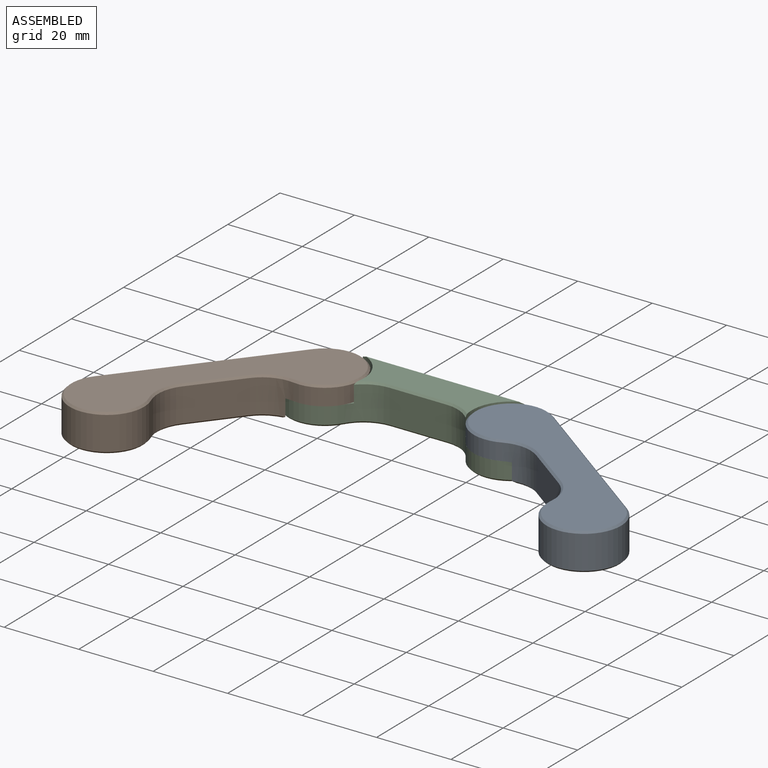
[diagram: assembled view]
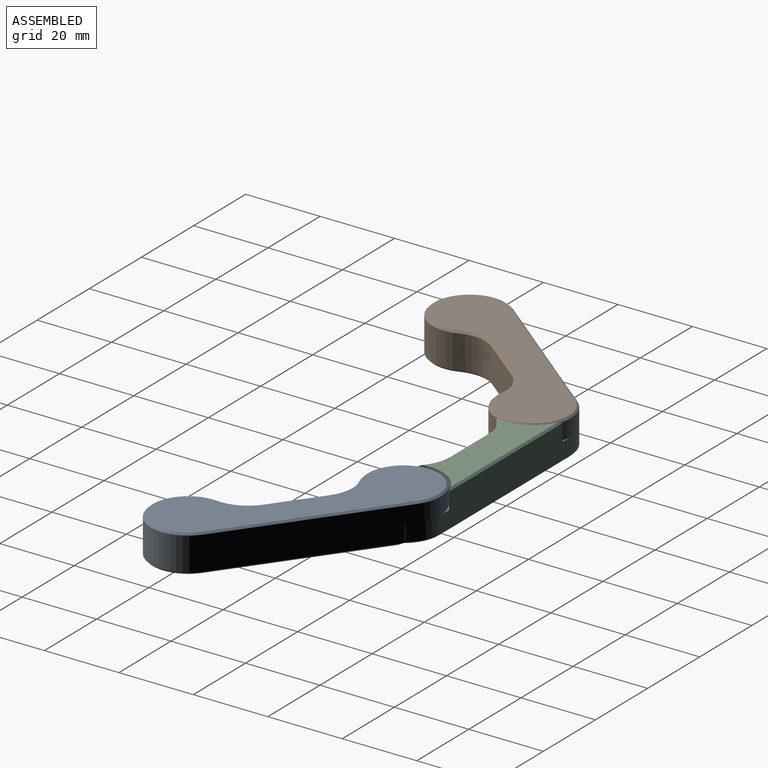
[diagram: assembled view, second angle]
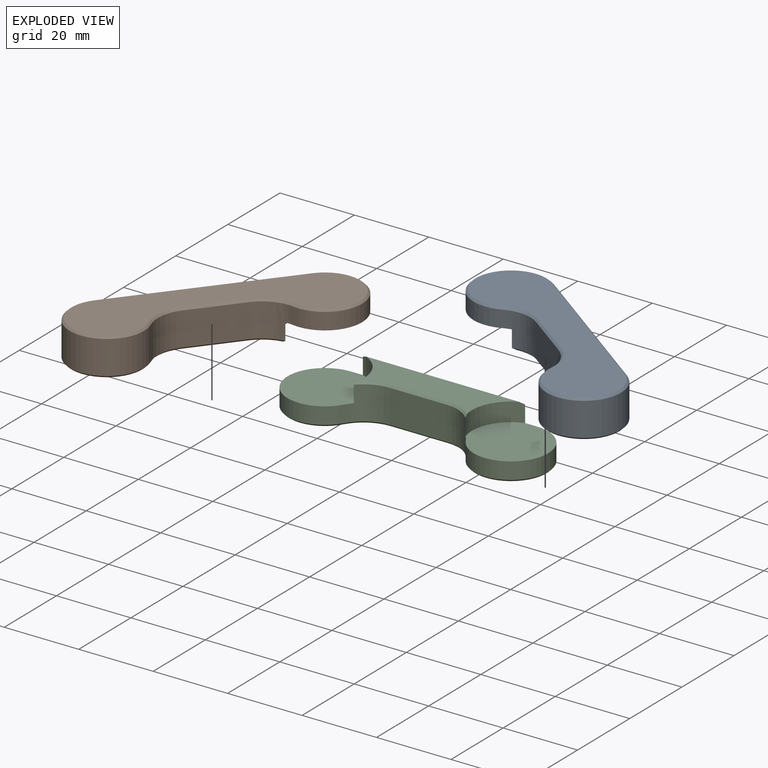
[diagram: exploded view]
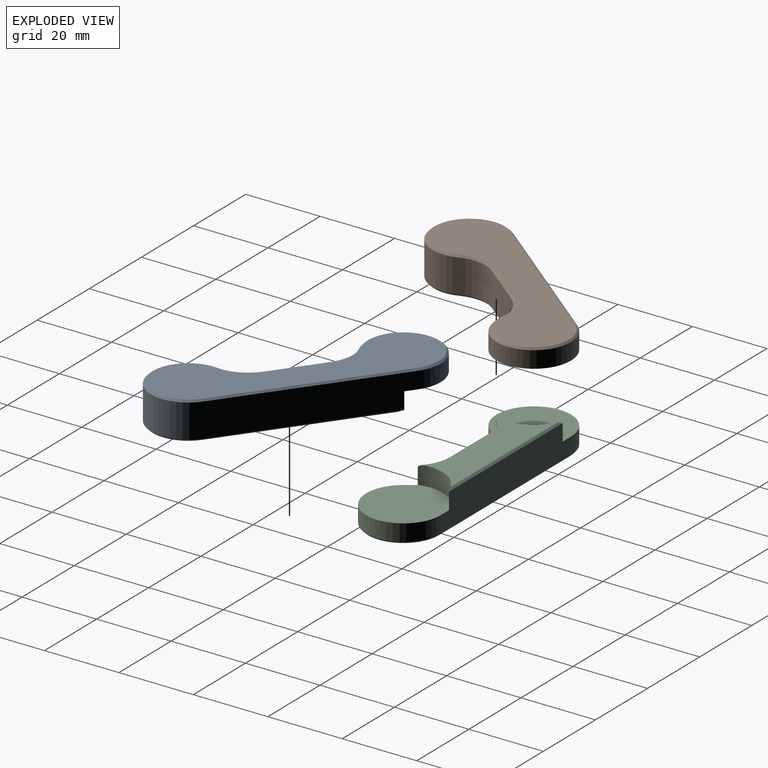
[diagram: exploded view, second angle]
ASSEMBLY  parts=3 mates=2
PART A: 21 faces, bbox 70x20x10 mm
  f0: cylinder r=10mm len=20mm, axis (0,0,1), area 188.5mm2, adj f4,f5,f11,f20
  f1: cylinder r=10mm len=20mm, axis (0,0,1), area 377mm2, adj f2,f5,f8,f16
  f2: cylinder r=10mm len=9mm, axis (0,0,1), area 94.2mm2, adj f1,f3,f10,f14
  f3: plane 15.36x9mm, normal (0,-1,0), area 138.2mm2, adj f2,f4,f12,f15
  f4: cylinder r=10mm len=9mm, axis (0,0,1), area 84mm2, adj f0,f3,f13,f17,f19,f20
  f5: plane 50x9mm, normal (0,1,0), area 435.6mm2, adj f0,f1,f9,f18,f19,f20
  f6: plane 55.03x19mm, normal (0,0,1), area 603.8mm2, adj f14,f15,f16,f17,f18,f19
  f7: plane 69x19mm, normal (0,0,-1), area 903.1mm2, adj f8,f9,f10,f11,f12,f13
  f8: cone r=10mm half-angle=45deg, axis (0,0,1), area 28.9mm2, adj f1,f7,f9,f10
  f9: plane 50x0.5mm, normal (0,0.71,-0.71), area 35.4mm2, adj f5,f7,f8,f11
  f10: cone r=10.5mm half-angle=45deg, axis (0,0,-1), area 7.6mm2, adj f2,f7,f8,f12
  f11: cone r=10mm half-angle=45deg, axis (0,0,1), area 28.9mm2, adj f0,f7,f9,f13
  f12: plane 15.36x0.5mm, normal (0,-0.71,-0.71), area 10.9mm2, adj f3,f7,f10,f13
  f13: cone r=10.5mm half-angle=45deg, axis (0,0,-1), area 7.6mm2, adj f4,f7,f11,f12
  f14: cone r=10mm half-angle=45deg, axis (0,0,1), area 7.6mm2, adj f2,f6,f15,f16
  f15: plane 15.36x0.5mm, normal (0,-0.71,0.71), area 10.9mm2, adj f3,f6,f14,f17
  f16: cone r=9.5mm half-angle=45deg, axis (0,0,-1), area 28.9mm2, adj f1,f6,f14,f18
  f17: cone r=10mm half-angle=45deg, axis (0,0,1), area 5.6mm2, adj f4,f6,f15,f19
  f18: plane 46.8x0.5mm, normal (0,0.71,0.71), area 32.6mm2, adj f5,f6,f16,f19
  f19: cylinder r=10.5mm len=13.18mm, axis (0,0,1), area 81.7mm2, adj f4,f5,f6,f17,f18,f20
  f20: plane 20.5x20mm, normal (0,0,1), area 323.1mm2, adj f0,f4,f5,f19
PART B: 21 faces, bbox 70x20x10 mm
  f0: cylinder r=10mm len=20mm, axis (0,0,1), area 188.5mm2, adj f1,f5,f8,f20
  f1: cylinder r=10mm len=9mm, axis (0,0,1), area 84mm2, adj f0,f2,f10,f14,f19,f20
  f2: plane 15.36x9mm, normal (0,-1,0), area 138.2mm2, adj f1,f3,f12,f15
  f3: cylinder r=10mm len=9mm, axis (0,0,1), area 94.2mm2, adj f2,f4,f13,f16
  f4: cylinder r=10mm len=20mm, axis (0,0,1), area 377mm2, adj f3,f5,f11,f18
  f5: plane 50x9mm, normal (0,1,0), area 435.6mm2, adj f0,f4,f9,f17,f19,f20
  f6: plane 55.03x19mm, normal (0,0,1), area 603.8mm2, adj f14,f15,f16,f17,f18,f19
  f7: plane 69x19mm, normal (0,0,-1), area 903.1mm2, adj f8,f9,f10,f11,f12,f13
  f8: cone r=10mm half-angle=45deg, axis (0,0,1), area 28.9mm2, adj f0,f7,f9,f10
  f9: plane 50x0.5mm, normal (0,0.71,-0.71), area 35.4mm2, adj f5,f7,f8,f11
  f10: cone r=10.5mm half-angle=45deg, axis (0,0,-1), area 7.6mm2, adj f1,f7,f8,f12
  f11: cone r=10mm half-angle=45deg, axis (0,0,1), area 28.9mm2, adj f4,f7,f9,f13
  f12: plane 15.36x0.5mm, normal (0,-0.71,-0.71), area 10.9mm2, adj f2,f7,f10,f13
  f13: cone r=10.5mm half-angle=45deg, axis (0,0,-1), area 7.6mm2, adj f3,f7,f11,f12
  f14: cone r=10mm half-angle=45deg, axis (0,0,1), area 5.6mm2, adj f1,f6,f15,f19
  f15: plane 15.36x0.5mm, normal (0,-0.71,0.71), area 10.9mm2, adj f2,f6,f14,f16
  f16: cone r=10mm half-angle=45deg, axis (0,0,1), area 7.6mm2, adj f3,f6,f15,f18
  f17: plane 46.8x0.5mm, normal (0,0.71,0.71), area 32.6mm2, adj f5,f6,f18,f19
  f18: cone r=9.5mm half-angle=45deg, axis (0,0,-1), area 28.9mm2, adj f4,f6,f16,f17
  f19: cylinder r=10.5mm len=13.18mm, axis (0,0,1), area 81.7mm2, adj f1,f5,f6,f14,f17,f20
  f20: plane 20.5x20mm, normal (0,0,1), area 323.1mm2, adj f0,f1,f5,f19
PART C: 22 faces, bbox 70x20x10 mm
  f0: cylinder r=10mm len=20mm, axis (0,0,1), area 188.5mm2, adj f2,f5,f8,f19
  f1: cylinder r=10mm len=20mm, axis (0,0,1), area 188.5mm2, adj f4,f5,f11,f21
  f2: cylinder r=10mm len=9mm, axis (0,0,1), area 84mm2, adj f0,f3,f10,f14,f18,f19
  f3: plane 15.36x9mm, normal (0,-1,0), area 138.2mm2, adj f2,f4,f12,f15
  f4: cylinder r=10mm len=9mm, axis (0,0,1), area 84mm2, adj f1,f3,f13,f16,f20,f21
  f5: plane 50x9mm, normal (0,1,0), area 421.2mm2, adj f0,f1,f9,f17,f18,f19,f20,f21
  f6: plane 41.06x11.73mm, normal (0,0,1), area 304.5mm2, adj f14,f15,f16,f17,f18,f20
  f7: plane 69x19mm, normal (0,0,-1), area 903.1mm2, adj f8,f9,f10,f11,f12,f13
  f8: cone r=10mm half-angle=45deg, axis (0,0,1), area 28.9mm2, adj f0,f7,f9,f10
  f9: plane 50x0.5mm, normal (0,0.71,-0.71), area 35.4mm2, adj f5,f7,f8,f11
  f10: cone r=10.5mm half-angle=45deg, axis (0,0,-1), area 7.6mm2, adj f2,f7,f8,f12
  f11: cone r=10mm half-angle=45deg, axis (0,0,1), area 28.9mm2, adj f1,f7,f9,f13
  f12: plane 15.36x0.5mm, normal (0,-0.71,-0.71), area 10.9mm2, adj f3,f7,f10,f13
  f13: cone r=10.5mm half-angle=45deg, axis (0,0,-1), area 7.6mm2, adj f4,f7,f11,f12
  f14: cone r=10mm half-angle=45deg, axis (0,0,1), area 5.6mm2, adj f2,f6,f15,f18
  f15: plane 15.36x0.5mm, normal (0,-0.71,0.71), area 10.9mm2, adj f3,f6,f14,f16
  f16: cone r=10mm half-angle=45deg, axis (0,0,1), area 5.6mm2, adj f4,f6,f15,f20
  f17: plane 43.6x0.5mm, normal (0,0.71,0.71), area 29.9mm2, adj f5,f6,f18,f20
  f18: cylinder r=10.5mm len=13.18mm, axis (0,0,1), area 81.7mm2, adj f2,f5,f6,f14,f17,f19
  f19: plane 20.5x20mm, normal (0,0,1), area 323.1mm2, adj f0,f2,f5,f18
  f20: cylinder r=10.5mm len=13.18mm, axis (0,0,1), area 81.7mm2, adj f4,f5,f6,f16,f17,f21
  f21: plane 20.5x20mm, normal (0,0,1), area 323.1mm2, adj f1,f4,f5,f20
PLACE A rot(axis=(0.31,0.95,0),180deg) t=(87.55,-33.57,10)mm
PLACE B rot(axis=(-0.43,0.9,0),180deg) t=(9.15,11.58,10)mm
PLACE C t=(-14.9,0,0)mm fixed
MATE revolute A.f0 <-> C.f1  axis (0,0,-1) through (45.1,10,5)mm
MATE revolute C.f0 <-> B.f0  axis (0,0,1) through (-4.9,10,5)mm
